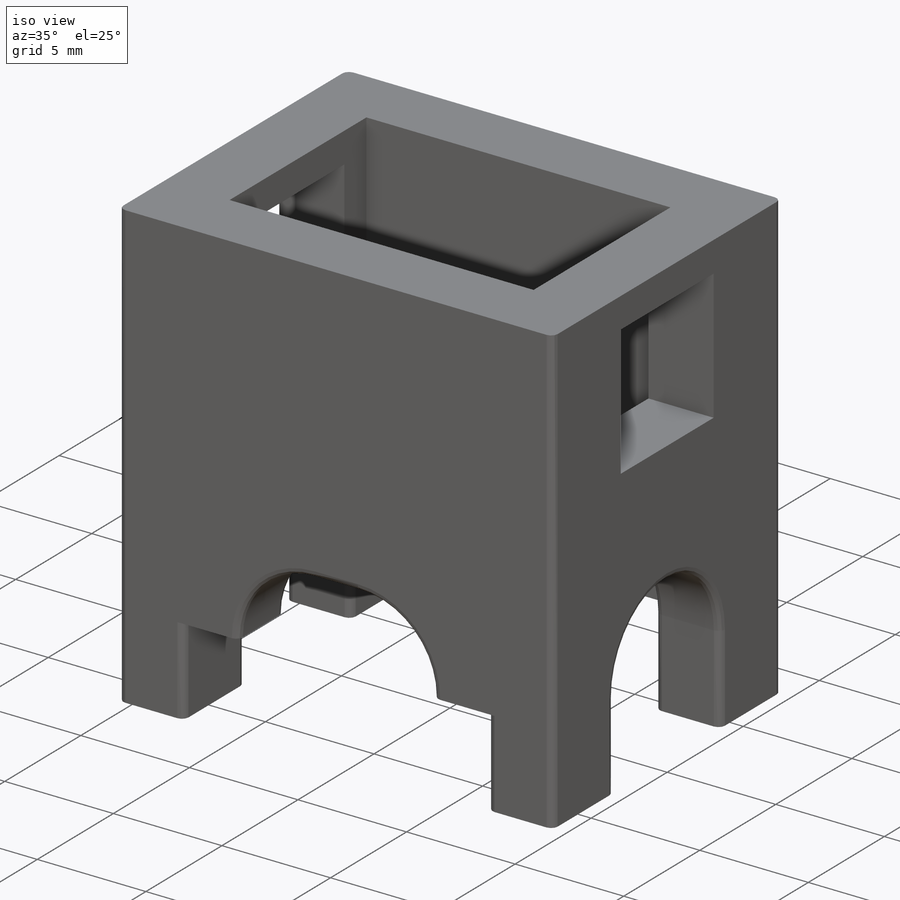
[diagram: iso view]
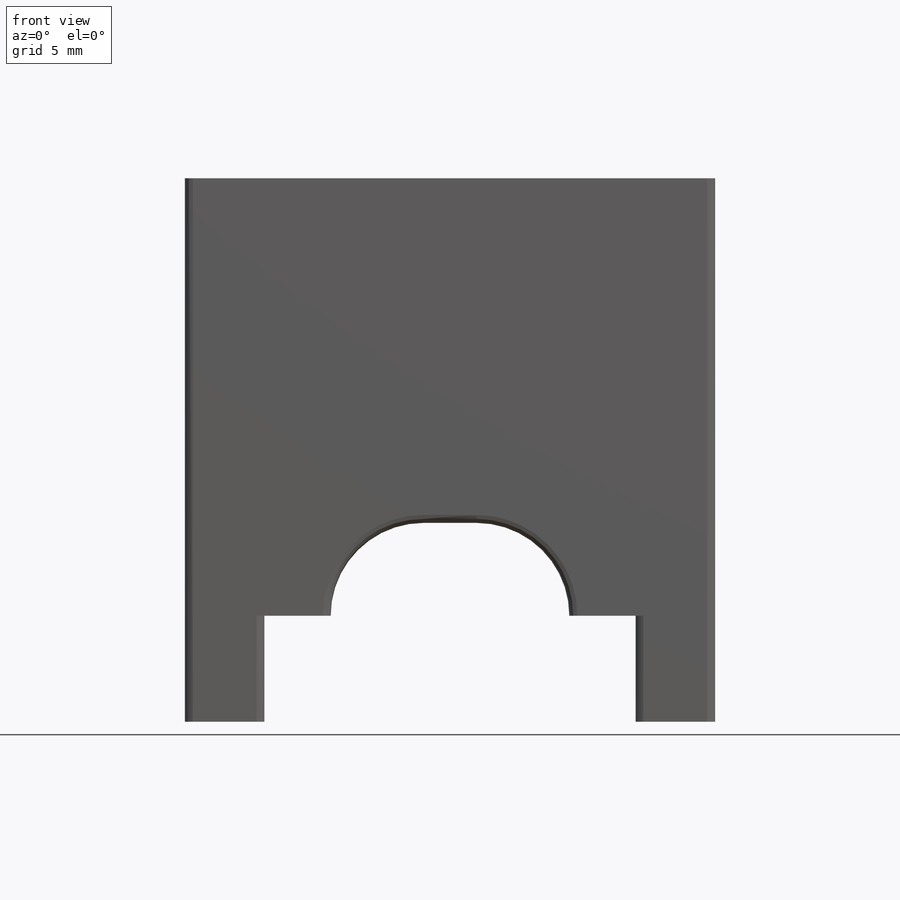
[diagram: front view]
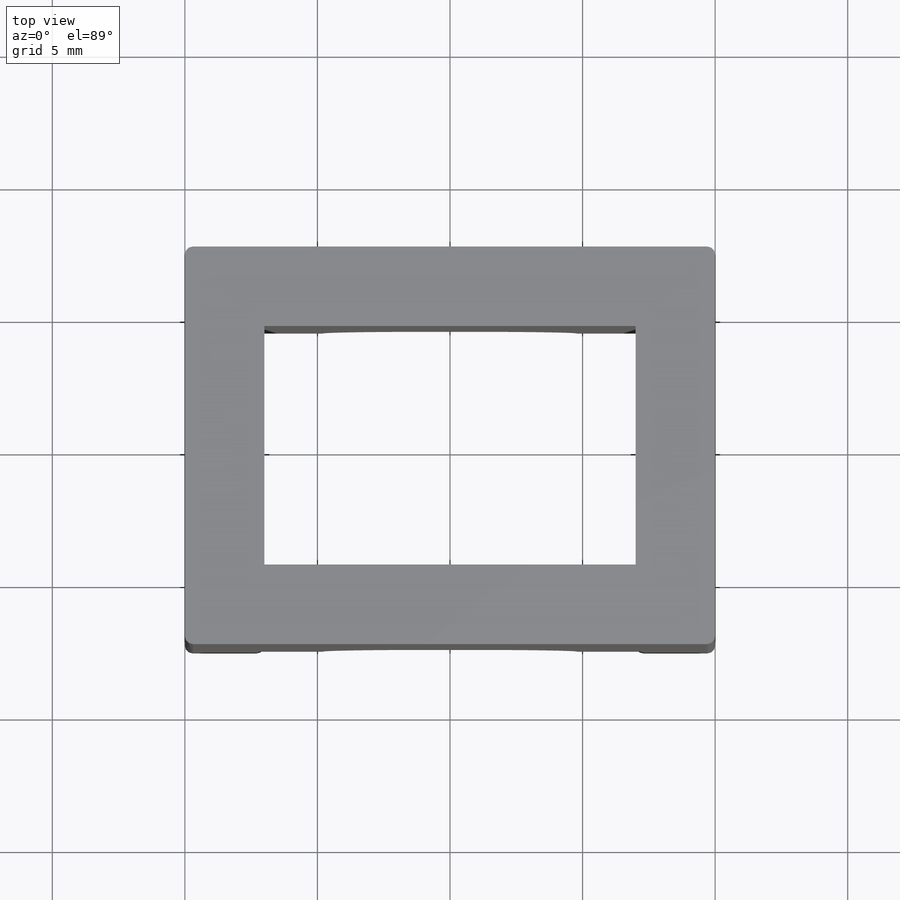
[diagram: top view]
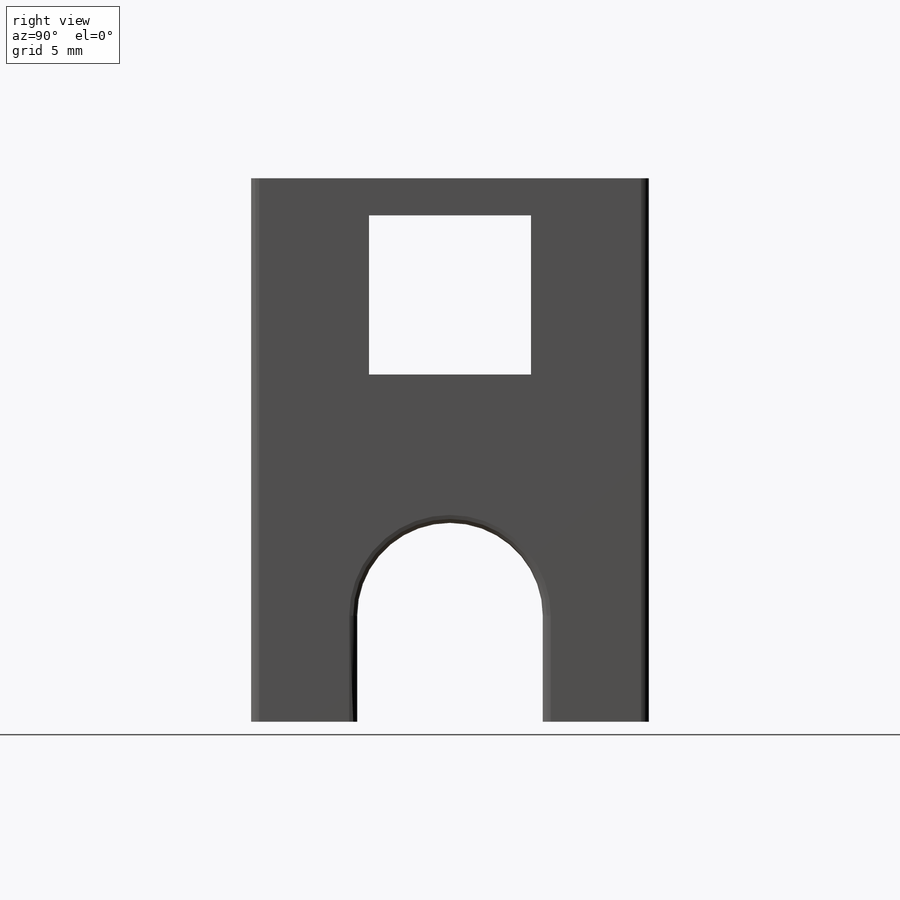
[diagram: right view]
SOLIDWORKS PART (.sldprt)
format: sldprt  version: not decoded by parser v0  size: 376,832 bytes
history: native  units: mm
features: sketch x5, plane x3, cut_extrude x3, extrude x2, fillet x2, material x1 (+10 scaffold rows collapsed)
feature tree (26):
  scaffold x10  (default folders/planes/origin — collapsed)
  material  "Материал <не указан>"
  plane  "Спереди"
  plane  "Сверху"
  plane  "Справа"
  sketch  "Эскиз1"  dims[D1=9.0mm D2=14.0mm D3=15.0mm D4=20.0mm]
  extrude  "Бобышка-Вытянуть1"  Depth=16.5mm
  sketch  "Эскиз2"  dims[D1=1.4mm D2=6.0mm]
  cut_extrude  "Вырез-Вытянуть1"  Depth=16.5mm
  sketch  "Эскиз4"  dims[c1.D1=3.5mm c1.D2=3.5mm c2.D2=9.0mm]
  cut_extrude  "Вырез-Вытянуть2"  Depth=16.5mm
  sketch  "Эскиз5"  dims[D1=7.0mm]
  cut_extrude  "Вырез-Вытянуть3"  Depth=16.5mm
  sketch  "Эскиз6"  dims[D1=4.0mm]
  extrude  "Бобышка-Вытянуть2"  Depth=4mm
  fillet  "Скругление1"  Radius=0.3mm
  fillet  "Скругление2"  Radius=0.3mm
decode coverage: 12 of 12 modeling features carry decoded parameters
note: suppression state not decoded; provenance and decode notes live in map.json
